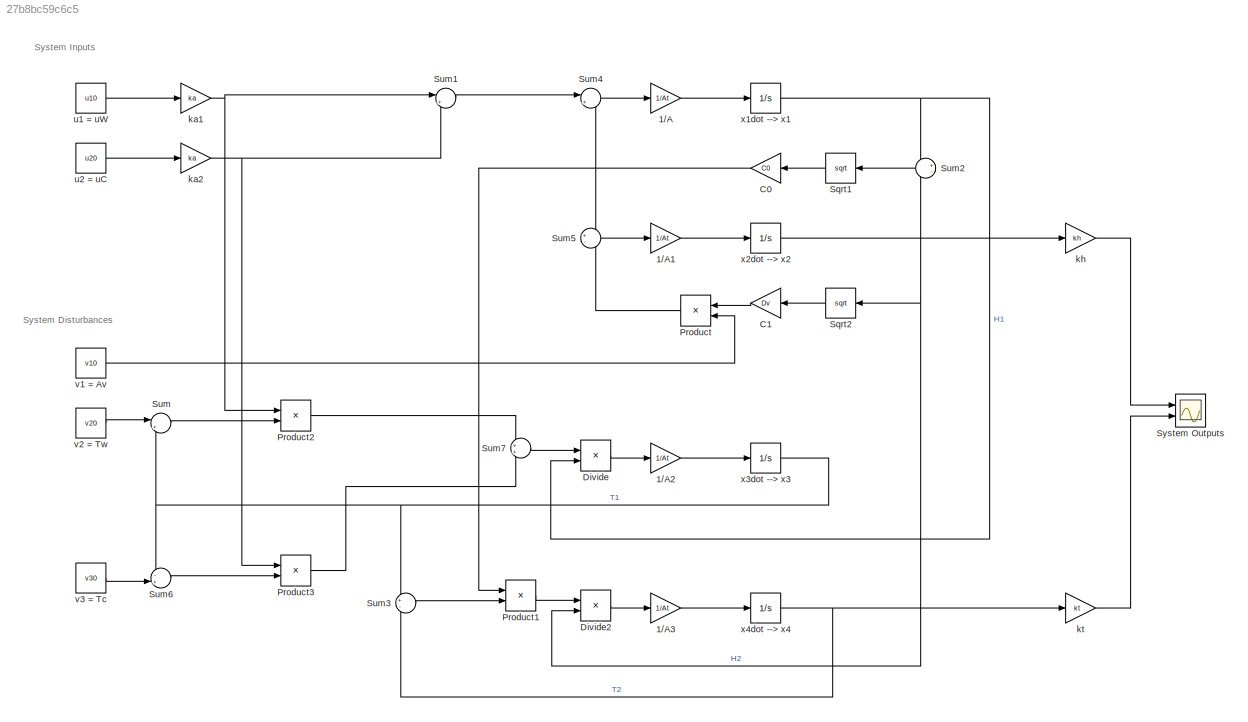
MODEL slx_27b8bc59c6c5
KIND model
CONFIG AbsTol = auto
CONFIG EnableMultiTasking = on
CONFIG FixedStep = STEP_SIZE
CONFIG MaxStep = auto
CONFIG MinStep = auto
CONFIG RelTol = 1e-3
CONFIG SampleTimeConstraint = Unconstrained
CONFIG SolverName = ode4
CONFIG StartTime = 0.0
CONFIG StopTime = SIM_TIME
BLOCK [Gain] 1//A
  Gain = 1/At
BLOCK [Gain] 1//A1
  Gain = 1/At
BLOCK [Gain] 1//A2
  Gain = 1/At
BLOCK [Gain] 1//A3
  Gain = 1/At
BLOCK [Gain] C0
  Gain = C0
BLOCK [Gain] C1
  Gain = Dv
BLOCK [Product] Divide
  Inputs = */
  Ports = [2, 1]
BLOCK [Product] Divide2
  Inputs = */
  Ports = [2, 1]
BLOCK [Product] Product
  Ports = [2, 1]
BLOCK [Product] Product1
  Ports = [2, 1]
BLOCK [Product] Product2
  Ports = [2, 1]
BLOCK [Product] Product3
  Ports = [2, 1]
BLOCK [Sqrt] Sqrt1
BLOCK [Sqrt] Sqrt2
BLOCK [Sum] Sum
  Inputs = |+-
  Ports = [2, 1]
BLOCK [Sum] Sum1
  Inputs = |++
  Ports = [2, 1]
BLOCK [Sum] Sum2
  Inputs = +-
  Ports = [2, 1]
BLOCK [Sum] Sum3
  Inputs = +-
  Ports = [2, 1]
BLOCK [Sum] Sum4
  Inputs = |+-
  Ports = [2, 1]
BLOCK [Sum] Sum5
  Inputs = +-
  Ports = [2, 1]
BLOCK [Sum] Sum6
  Inputs = -+|
  Ports = [2, 1]
BLOCK [Sum] Sum7
  Ports = [2, 1]
BLOCK [Scope] System Outputs
  Floating = off
  NumInputPorts = 2
  Ports = [2]
  ScopeSpecificationString = Simulink.scopes.TimeScopeBlockCfg('CurrentConfiguration', extmgr.ConfigurationSet(extmgr.Configuration('Core','General UI',true,'FigureColor',[0.501960784313725 0.501960784313725 0.501960784313725]),extmgr.Configuration('Core','Source UI',true),extmgr.Configuration('Sources','WiredSimulink',true,'DataLoggingSaveFormat','StructureWithTime','DataLoggingDecimation','1','DataLoggingDecimateData',true)...<+3746ch>
BLOCK [Gain] ka1
  Gain = ka
BLOCK [Gain] ka2
  Gain = ka
BLOCK [Gain] kh
  Gain = kh
BLOCK [Gain] kt
  Gain = kt
BLOCK [Constant] u1 = uW
  Value = u10
BLOCK [Constant] u2 = uC
  Value = u20
BLOCK [Constant] v1 = Av
  Value = v10
BLOCK [Constant] v2 = Tw
  Value = v20
BLOCK [Constant] v3 = Tc
  Value = v30
BLOCK [Integrator] x1dot --> x1
  InitialCondition = x0(1)
  LimitOutput = on
  LowerSaturationLimit = 0
  Ports = [1, 1]
  Priority = 1
BLOCK [Integrator] x2dot --> x2
  InitialCondition = x0(2)
  LimitOutput = on
  LowerSaturationLimit = 0
  Ports = [1, 1]
  Priority = 2
BLOCK [Integrator] x3dot --> x3
  InitialCondition = x0(3)
  Ports = [1, 1]
  Priority = 3
BLOCK [Integrator] x4dot --> x4
  InitialCondition = x0(4)
  Ports = [1, 1]
  Priority = 4
ANNOTATION (root): System Disturbances
ANNOTATION (root): System Inputs
LINE 1//A1:1 -> x2dot --> x2:1
LINE 1//A2:1 -> x3dot --> x3:1
LINE 1//A3:1 -> x4dot --> x4:1
LINE 1//A:1 -> x1dot --> x1:1
NET C0:1 -> Product1:1, Sum4:2, Sum5:1
LINE C1:1 -> Product:1
LINE Divide2:1 -> 1//A3:1
LINE Divide:1 -> 1//A2:1
LINE Product1:1 -> Divide2:1
LINE Product2:1 -> Sum7:1
LINE Product3:1 -> Sum7:2
LINE Product:1 -> Sum5:2
LINE Sqrt1:1 -> C0:1
LINE Sqrt2:1 -> C1:1
LINE Sum1:1 -> Sum4:1
LINE Sum2:1 -> Sqrt1:1
LINE Sum3:1 -> Product1:2
LINE Sum4:1 -> 1//A:1
LINE Sum5:1 -> 1//A1:1
LINE Sum6:1 -> Product3:2
LINE Sum7:1 -> Divide:1
LINE Sum:1 -> Product2:2
NET ka1:1 -> Product2:1, Sum1:1
NET ka2:1 -> Product3:1, Sum1:2
LINE kh:1 -> System Outputs:1
LINE kt:1 -> System Outputs:2
LINE u1 = uW:1 -> ka1:1
LINE u2 = uC:1 -> ka2:1
LINE v1 = Av:1 -> Product:2
LINE v2 = Tw:1 -> Sum:1
LINE v3 = Tc:1 -> Sum6:2
NET x1dot --> x1:1 -> Divide:2, Sum2:1
NET x2dot --> x2:1 -> Divide2:2, Sqrt2:1, Sum2:2, kh:1
NET x3dot --> x3:1 -> Sum3:1, Sum6:1, Sum:2
NET x4dot --> x4:1 -> Sum3:2, kt:1
note: NET lines group one-source signal fan-out (src -> all destinations, sorted); 1:1 wires keep LINE
